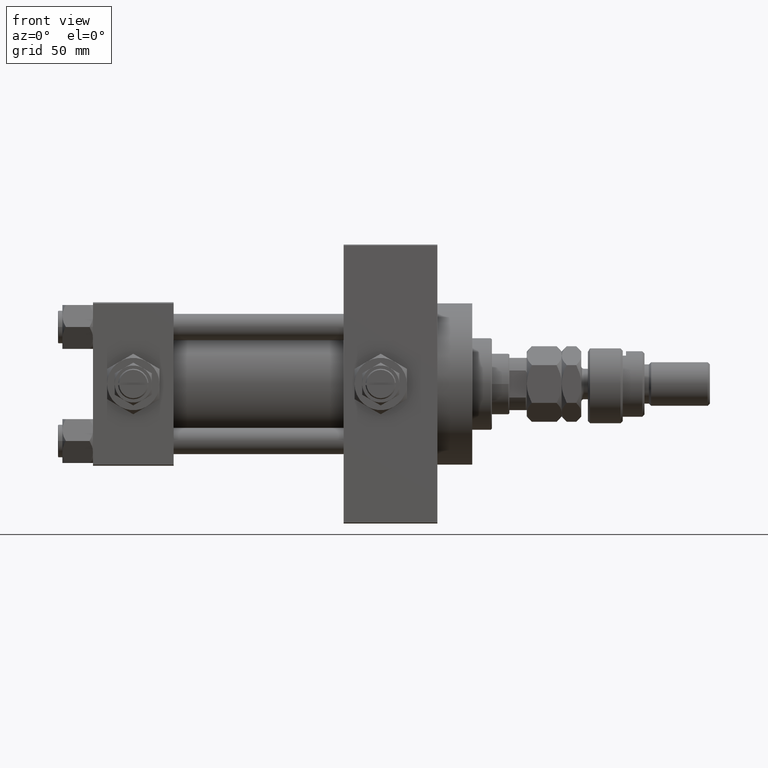
[diagram: clean part render]
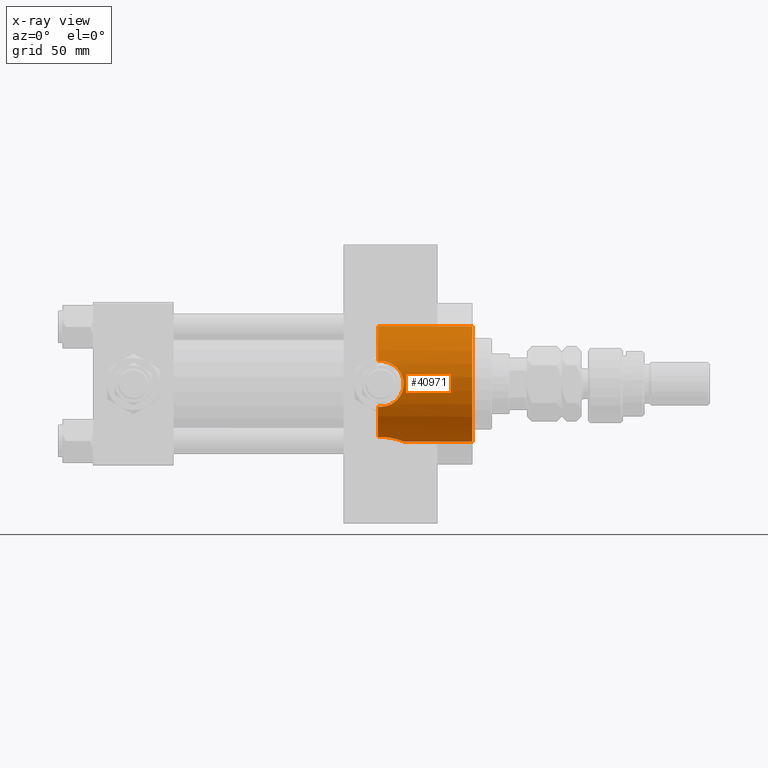
[diagram: x-ray — body ghosted, one internal face saturated and labeled with its STEP entity id]
A machine part, front view, then the same camera in x-ray: the body is ghosted and one INTERNAL B-rep face — a face not visible from any outside direction — is saturated and labeled: STEP entity #40971.
In plain terms, the highlighted cylindrical surface (partial cylindrical patch) has radius 26.5 mm, axis along (1, 0, 0).
Its self-contained STEP definition (entity closure, byte-faithful):
#74 = CARTESIAN_POINT ( 'NONE',  ( 174.0000000000000000, 0.000000000000000000, 0.000000000000000000 ) ) ;
#217 = VERTEX_POINT ( 'NONE', #51895 ) ;
#335 = EDGE_CURVE ( 'NONE', #34416, #4103, #43210, .T. ) ;
#417 = VECTOR ( 'NONE', #37359, 1000.000000000000000 ) ;
#613 = CARTESIAN_POINT ( 'NONE',  ( 131.5811236364006049, -24.33967132070604933, -10.47999999999998444 ) ) ;
#1700 = CARTESIAN_POINT ( 'NONE',  ( 139.5076201536012093, -7.348534936426551312, -25.46581292754183679 ) ) ;
#2255 = CYLINDRICAL_SURFACE ( 'NONE', #23442, 26.50000000000000355 ) ;
#2316 = CARTESIAN_POINT ( 'NONE',  ( 141.4057128516256228, -26.09263577897064224, -4.673612418766440513 ) ) ;
#2570 = CARTESIAN_POINT ( 'NONE',  ( 137.2635990777562256, -24.90054338428140568, -9.068796382691630242 ) ) ;
#2826 = CARTESIAN_POINT ( 'NONE',  ( 142.1219222710722647, -26.36027543327035261, 2.738055544399092600 ) ) ;
#3090 = CARTESIAN_POINT ( 'NONE',  ( 139.8850942087586304, -25.58093385762821725, 6.936447548980003042 ) ) ;
#3885 = AXIS2_PLACEMENT_3D ( 'NONE', #74, #24874, #35961 ) ;
#4103 = VERTEX_POINT ( 'NONE', #9917 ) ;
#5633 = CARTESIAN_POINT ( 'NONE',  ( 132.0000000000000000, -24.33967132070604933, -10.47999999999998444 ) ) ;
#5653 = CARTESIAN_POINT ( 'NONE',  ( 132.2451057705677329, -10.50334255171939013, -24.32972513250578928 ) ) ;
#5912 = CARTESIAN_POINT ( 'NONE',  ( 138.6874981071936759, -8.077221093107572969, -25.24030799844106454 ) ) ;
#6172 = CARTESIAN_POINT ( 'NONE',  ( 140.6508763872861323, -5.926808359427509387, -25.83050513016100069 ) ) ;
#6440 = CARTESIAN_POINT ( 'NONE',  ( 138.3983008714430412, -8.308216825530742256, -25.16494175890555596 ) ) ;
#6535 = CARTESIAN_POINT ( 'NONE',  ( 141.9191483855533988, -26.28308039691835774, 3.400110870430087306 ) ) ;
#6731 = CARTESIAN_POINT ( 'NONE',  ( 130.7400000000000091, -10.40398000767012832, -24.37226292324946186 ) ) ;
#7245 = CARTESIAN_POINT ( 'NONE',  ( 132.0000000000000000, -24.33967132070604933, 10.47999999999998799 ) ) ;
#7260 = DIRECTION ( 'NONE',  ( 0.000000000000000000, 0.000000000000000000, -1.000000000000000000 ) ) ;
#7419 = ORIENTED_EDGE ( 'NONE', *, *, #43731, .F. ) ;
#7506 = CARTESIAN_POINT ( 'NONE',  ( 131.1580741051582208, -24.35064928096444703, 10.45461191700780645 ) ) ;
#8403 = DIRECTION ( 'NONE',  ( 0.000000000000000000, 0.000000000000000000, -1.000000000000000000 ) ) ;
#8791 = ORIENTED_EDGE ( 'NONE', *, *, #13698, .T. ) ;
#8805 = EDGE_CURVE ( 'NONE', #13009, #217, #47596, .T. ) ;
#9318 = ORIENTED_EDGE ( 'NONE', *, *, #42262, .T. ) ;
#9624 = CARTESIAN_POINT ( 'NONE',  ( 141.2276638786151750, -4.981583166679961039, -26.02957788900645397 ) ) ;
#9917 = CARTESIAN_POINT ( 'NONE',  ( 132.0000000000000000, -24.33967132070604933, 10.47999999999998799 ) ) ;
#10144 = EDGE_CURVE ( 'NONE', #4103, #32244, #18688, .T. ) ;
#10155 = CARTESIAN_POINT ( 'NONE',  ( 141.8335546017134448, -3.642695553053290958, -26.25084325021122922 ) ) ;
#10509 = CARTESIAN_POINT ( 'NONE',  ( 136.6580558779861008, -24.77960996754317691, -9.394203453174519325 ) ) ;
#10983 = EDGE_LOOP ( 'NONE', ( #14423, #40629, #38777, #46725, #8791, #7419, #9318, #50730, #38457 ) ) ;
#11033 = CARTESIAN_POINT ( 'NONE',  ( 138.4049404352971351, -25.16229795609818609, -8.322848467437516717 ) ) ;
#11218 = CARTESIAN_POINT ( 'NONE',  ( 131.5796744023297435, -24.33967132070604933, 10.47999999999998799 ) ) ;
#11512 = CARTESIAN_POINT ( 'NONE',  ( 132.0000000000000000, -24.33967132070604933, -10.47999999999998444 ) ) ;
#11569 = B_SPLINE_CURVE_WITH_KNOTS ( 'NONE', 3,
 ( #13329, #44400, #48356, #28356, #46229, #10155, #45959, #26232, #9624, #42288, #6172, #45690, #1700, #5912, #6440, #29658, #22547, #25708, #18599, #42545, #37825, #41771, #38614, #5653, #30709, #41500 ),
 .UNSPECIFIED., .F., .F.,
 ( 4, 2, 2, 2, 2, 2, 2, 2, 2, 2, 2, 2, 4 ),
 ( 0.01781170071191079049, 0.02003745927526348961, 0.02115033855693983916, 0.02226321783861619219, 0.02337609712029254175, 0.02448897640196889131, 0.02671473496532159389, 0.02782761424699794345, 0.02894049352867429648, 0.03005337281035064950, 0.03116625209202700253, 0.03339201065537962532, 0.03561776921873225504 ),
 .UNSPECIFIED. ) ;
#12066 = CARTESIAN_POINT ( 'NONE',  ( 138.9147507852791534, -25.30155050139244111, 7.882476147205575323 ) ) ;
#13009 = VERTEX_POINT ( 'NONE', #15355 ) ;
#13329 = CARTESIAN_POINT ( 'NONE',  ( 142.4800000000001603, 1.044554930096985600E-14, -26.50000000000006750 ) ) ;
#13698 = EDGE_CURVE ( 'NONE', #13009, #39894, #11569, .T. ) ;
#14213 = CARTESIAN_POINT ( 'NONE',  ( 141.9389570606566053, -26.28956209411558476, -3.395175965175881938 ) ) ;
#14423 = ORIENTED_EDGE ( 'NONE', *, *, #15668, .F. ) ;
#14972 = DIRECTION ( 'NONE',  ( 1.000000000000000000, -0.000000000000000000, -0.000000000000000000 ) ) ;
#14997 = CARTESIAN_POINT ( 'NONE',  ( 140.3132647636415413, -25.71940794313461254, -6.390292897823897533 ) ) ;
#15355 = CARTESIAN_POINT ( 'NONE',  ( 142.4800000000001603, 1.044554930096985600E-14, -26.50000000000006750 ) ) ;
#15668 = EDGE_CURVE ( 'NONE', #44246, #32244, #21460, .T. ) ;
#16024 = CARTESIAN_POINT ( 'NONE',  ( 138.1110651716822701, -25.09360970262139645, 8.520611273842991551 ) ) ;
#16275 = CARTESIAN_POINT ( 'NONE',  ( 132.6982936874238703, -24.33967132070605288, 10.47999999999998799 ) ) ;
#16618 = CARTESIAN_POINT ( 'NONE',  ( 174.0000000000000000, 3.245314017740486554E-15, 26.50000000000000355 ) ) ;
#18426 = CARTESIAN_POINT ( 'NONE',  ( 142.3421836049517140, -26.44572692659851754, -1.728475508984261610 ) ) ;
#18599 = CARTESIAN_POINT ( 'NONE',  ( 136.5335921408433251, -9.455792512420339690, -24.75606841526505519 ) ) ;
#18686 = CARTESIAN_POINT ( 'NONE',  ( 141.3916535229813576, -26.08830885934474253, 4.663043711798783519 ) ) ;
#18688 = B_SPLINE_CURVE_WITH_KNOTS ( 'NONE', 3,
 ( #7245, #11218, #7506, #50725 ),
 .UNSPECIFIED., .F., .F.,
 ( 4, 4 ),
 ( 0.03437190755806009829, 0.03561776921873222035 ),
 .UNSPECIFIED. ) ;
#18942 = CARTESIAN_POINT ( 'NONE',  ( 141.8022638174866472, -26.23907308479209988, 3.723318718764343949 ) ) ;
#21460 = CIRCLE ( 'NONE', #50042, 26.50000000000000355 ) ;
#21481 = CARTESIAN_POINT ( 'NONE',  ( 130.7400000000000091, -24.37226292324946542, -10.40398000767012299 ) ) ;
#22547 = CARTESIAN_POINT ( 'NONE',  ( 137.4947120380321905, -8.931495953537146093, -24.95025484238639990 ) ) ;
#22635 = CARTESIAN_POINT ( 'NONE',  ( 136.3489237122697659, -24.72318467201153425, -9.541179571695405315 ) ) ;
#22896 = CARTESIAN_POINT ( 'NONE',  ( 142.4114040688937735, -26.47265107862980926, 1.382412405478187001 ) ) ;
#23442 = AXIS2_PLACEMENT_3D ( 'NONE', #26530, #42578, #7260 ) ;
#23680 = CARTESIAN_POINT ( 'NONE',  ( 138.3864792908362631, -25.16230905708523480, 8.316254619809530624 ) ) ;
#24187 = CARTESIAN_POINT ( 'NONE',  ( 134.7286532048194090, -24.48994387988090438, 10.12445329003760008 ) ) ;
#24439 = CARTESIAN_POINT ( 'NONE',  ( 134.3947302122628287, -24.45488967133339386, 10.20851256290625741 ) ) ;
#24874 = DIRECTION ( 'NONE',  ( 1.000000000000000000, 0.000000000000000000, 0.000000000000000000 ) ) ;
#25211 = AXIS2_PLACEMENT_3D ( 'NONE', #30118, #38281, #34320 ) ;
#25644 = CARTESIAN_POINT ( 'NONE',  ( 130.7400000000000091, -24.37226292324946186, 10.40398000767012654 ) ) ;
#25708 = CARTESIAN_POINT ( 'NONE',  ( 136.8603660912149849, -9.291949300782544441, -24.81826977973610937 ) ) ;
#25954 = CARTESIAN_POINT ( 'NONE',  ( 131.1611364518797984, -24.35049096341793273, -10.45498279016080012 ) ) ;
#26065 = CARTESIAN_POINT ( 'NONE',  ( 139.8811664359166400, -25.58300917221410486, -6.916171625962123315 ) ) ;
#26232 = CARTESIAN_POINT ( 'NONE',  ( 141.3963988635402700, -4.655434592126345805, -26.09007526830297863 ) ) ;
#26236 = VECTOR ( 'NONE', #14972, 1000.000000000000000 ) ;
#26530 = CARTESIAN_POINT ( 'NONE',  ( 130.7400000000000091, 0.000000000000000000, 0.000000000000000000 ) ) ;
#26589 = CARTESIAN_POINT ( 'NONE',  ( 138.9276451403626993, -25.30216499957183984, -7.893159106980509598 ) ) ;
#26663 = CIRCLE ( 'NONE', #3885, 26.50000000000000355 ) ;
#26845 = CARTESIAN_POINT ( 'NONE',  ( 142.4626037639855838, -26.49310609510638770, -0.6963515910539429532 ) ) ;
#27104 = CARTESIAN_POINT ( 'NONE',  ( 141.5385175848663266, -26.14168889184969657, 4.354785931857517056 ) ) ;
#28115 = VERTEX_POINT ( 'NONE', #16618 ) ;
#28356 = CARTESIAN_POINT ( 'NONE',  ( 142.1654842721634111, -2.575241489874372736, -26.37710048711162969 ) ) ;
#29658 = CARTESIAN_POINT ( 'NONE',  ( 137.8022832347253086, -8.734885810676995987, -25.02004257437574708 ) ) ;
#30118 = CARTESIAN_POINT ( 'NONE',  ( 130.7400000000000091, 0.000000000000000000, 0.000000000000000000 ) ) ;
#30288 = CARTESIAN_POINT ( 'NONE',  ( 135.4024368383432204, -24.56844862672226881, -9.935854460437951730 ) ) ;
#30709 = CARTESIAN_POINT ( 'NONE',  ( 131.4868983507927283, -10.49443499905852661, -24.33364968799253703 ) ) ;
#31060 = CARTESIAN_POINT ( 'NONE',  ( 132.6904960883777846, -24.33967132070604578, -10.47999999999998622 ) ) ;
#31551 = CARTESIAN_POINT ( 'NONE',  ( 130.7400000000000091, 3.245314017740486554E-15, 26.50000000000000355 ) ) ;
#31578 = CARTESIAN_POINT ( 'NONE',  ( 135.7173844672076939, -24.61993612039166024, 9.804529592362708712 ) ) ;
#32084 = CARTESIAN_POINT ( 'NONE',  ( 136.6659000583123031, -24.77500862834707362, 9.408993987884874954 ) ) ;
#32244 = VERTEX_POINT ( 'NONE', #25644 ) ;
#32335 = CARTESIAN_POINT ( 'NONE',  ( 135.3904700717597223, -24.57248644795726022, 9.922439993611760656 ) ) ;
#32726 = EDGE_CURVE ( 'NONE', #44246, #28115, #46034, .T. ) ;
#32900 = CARTESIAN_POINT ( 'NONE',  ( 130.7400000000000091, 0.000000000000000000, 0.000000000000000000 ) ) ;
#33412 = CARTESIAN_POINT ( 'NONE',  ( 130.7400000000000091, 3.245314017740486554E-15, 26.50000000000000355 ) ) ;
#33589 = CIRCLE ( 'NONE', #25211, 26.50000000000000355 ) ;
#34320 = DIRECTION ( 'NONE',  ( 0.000000000000000000, 0.000000000000000000, -1.000000000000000000 ) ) ;
#34416 = VERTEX_POINT ( 'NONE', #11512 ) ;
#34740 = CARTESIAN_POINT ( 'NONE',  ( 133.3786097457406470, -24.36915941385105100, -10.41231194222668321 ) ) ;
#35004 = CARTESIAN_POINT ( 'NONE',  ( 141.0679913760332624, -25.97354752128885025, 5.264851845784581208 ) ) ;
#35267 = CARTESIAN_POINT ( 'NONE',  ( 132.0000000000000000, -24.33967132070604933, -10.47999999999998444 ) ) ;
#35515 = CARTESIAN_POINT ( 'NONE',  ( 132.0000000000000000, -24.33967132070604933, 10.47999999999998799 ) ) ;
#35961 = DIRECTION ( 'NONE',  ( 0.000000000000000000, 0.000000000000000000, -1.000000000000000000 ) ) ;
#37117 = VERTEX_POINT ( 'NONE', #45756 ) ;
#37359 = DIRECTION ( 'NONE',  ( 1.000000000000000000, -0.000000000000000000, -0.000000000000000000 ) ) ;
#37825 = CARTESIAN_POINT ( 'NONE',  ( 135.5115735695664227, -9.881194972351261541, -24.58915736193083390 ) ) ;
#38281 = DIRECTION ( 'NONE',  ( 1.000000000000000000, 0.000000000000000000, 0.000000000000000000 ) ) ;
#38448 = CARTESIAN_POINT ( 'NONE',  ( 140.5155153844949893, -25.78569419426081311, -6.118106053452856408 ) ) ;
#38457 = ORIENTED_EDGE ( 'NONE', *, *, #10144, .T. ) ;
#38614 = CARTESIAN_POINT ( 'NONE',  ( 133.7216423275558839, -10.36418010715236093, -24.38933169417625635 ) ) ;
#38702 = CARTESIAN_POINT ( 'NONE',  ( 137.5577538920436496, -24.96463143003449758, -8.891425016462831010 ) ) ;
#38754 = EDGE_CURVE ( 'NONE', #28115, #217, #26663, .T. ) ;
#38777 = ORIENTED_EDGE ( 'NONE', *, *, #38754, .T. ) ;
#38956 = CARTESIAN_POINT ( 'NONE',  ( 139.6501220615577097, -25.51256335955728005, -7.170912732211439433 ) ) ;
#39194 = CARTESIAN_POINT ( 'NONE',  ( 130.7400000000000091, 0.000000000000000000, -26.50000000000000355 ) ) ;
#39218 = CARTESIAN_POINT ( 'NONE',  ( 142.4798633477534224, -26.49994595790487750, 0.6963870350870441372 ) ) ;
#39894 = VERTEX_POINT ( 'NONE', #6731 ) ;
#40309 = DIRECTION ( 'NONE',  ( 1.000000000000000000, 0.000000000000000000, 0.000000000000000000 ) ) ;
#40629 = ORIENTED_EDGE ( 'NONE', *, *, #32726, .T. ) ;
#40971 = ADVANCED_FACE ( 'NONE', ( #51267 ), #2255, .F. ) ;
#41500 = CARTESIAN_POINT ( 'NONE',  ( 130.7400000000000091, -10.40398000767012832, -24.37226292324946186 ) ) ;
#41771 = CARTESIAN_POINT ( 'NONE',  ( 134.4459359432478323, -10.21777125531389174, -24.45211332338677579 ) ) ;
#42125 = CARTESIAN_POINT ( 'NONE',  ( 142.3935590552673602, -26.46591511510092332, -1.387412420731378715 ) ) ;
#42262 = EDGE_CURVE ( 'NONE', #37117, #34416, #50962, .T. ) ;
#42288 = CARTESIAN_POINT ( 'NONE',  ( 140.8553297434205831, -5.616857363200505660, -25.89992295911058307 ) ) ;
#42545 = CARTESIAN_POINT ( 'NONE',  ( 135.8600678267363833, -9.750145953289925060, -24.64162310621548713 ) ) ;
#42578 = DIRECTION ( 'NONE',  ( 1.000000000000000000, -0.000000000000000000, -0.000000000000000000 ) ) ;
#42635 = CARTESIAN_POINT ( 'NONE',  ( 142.2075249541714754, -26.39335609204158573, 2.399236127628234794 ) ) ;
#42892 = CARTESIAN_POINT ( 'NONE',  ( 142.4800680225663712, -26.50002690099940494, -0.3451042088078350445 ) ) ;
#43145 = CARTESIAN_POINT ( 'NONE',  ( 140.3165002292777785, -25.71874665637611912, 6.413821170274206729 ) ) ;
#43210 = B_SPLINE_CURVE_WITH_KNOTS ( 'NONE', 3,
 ( #35267, #31060, #34740, #47105, #30288, #22635, #10509, #2570, #38702, #11033, #26589, #38956, #26065, #14997, #38448, #50274, #2316, #14213, #50537, #18426, #42125, #26845, #42892, #39218, #22896, #42635, #2826, #6535, #18942, #27104, #18686, #35004, #51065, #43145, #3090, #51325, #12066, #23680, #16024, #44428, #32084, #31578, #32335, #24187, #24439, #48385, #16275, #35515 ),
 .UNSPECIFIED., .F., .F.,
 ( 4, 2, 2, 2, 2, 2, 2, 2, 2, 2, 2, 2, 2, 2, 2, 2, 2, 2, 2, 2, 2, 2, 2, 4 ),
 ( 0.001255586767787714641, 0.003325356817179755085, 0.005395126866571796180, 0.006430011891267852289, 0.007464896915963908398, 0.009534666965355952095, 0.01056955199005197438, 0.01160443701474799492, 0.01367420706413999265, 0.01574397711353198864, 0.01677886213822798664, 0.01781374716292398463, 0.01988351721231598410, 0.02091840223701198556, 0.02195328726170798356, 0.02298817228640397808, 0.02402305731109997608, 0.02609282736049197207, 0.02712771238518797007, 0.02816259740988396806, 0.03023236745927596406, 0.03126725248397199675, 0.03230213750866803291, 0.03437190755806009829 ),
 .UNSPECIFIED. ) ;
#43731 = EDGE_CURVE ( 'NONE', #37117, #39894, #33589, .T. ) ;
#44246 = VERTEX_POINT ( 'NONE', #31551 ) ;
#44400 = CARTESIAN_POINT ( 'NONE',  ( 142.4800000000000466, -0.7466733969459936615, -26.50000000000001421 ) ) ;
#44428 = CARTESIAN_POINT ( 'NONE',  ( 137.2636119660473923, -24.89625137302611080, 9.087734872939162045 ) ) ;
#45690 = CARTESIAN_POINT ( 'NONE',  ( 139.9981355541606547, -6.811571481472481260, -25.61680511670812876 ) ) ;
#45756 = CARTESIAN_POINT ( 'NONE',  ( 130.7400000000000091, -24.37226292324946542, -10.40398000767012299 ) ) ;
#45959 = CARTESIAN_POINT ( 'NONE',  ( 141.6993435614955956, -3.985990130492289563, -26.20070574291654353 ) ) ;
#46034 = LINE ( 'NONE', #33412, #417 ) ;
#46229 = CARTESIAN_POINT ( 'NONE',  ( 142.0665133812162537, -2.938253791439163987, -26.33899517628734088 ) ) ;
#46725 = ORIENTED_EDGE ( 'NONE', *, *, #8805, .F. ) ;
#47105 = CARTESIAN_POINT ( 'NONE',  ( 134.7461877943154036, -24.48462605612511567, -10.13781324604277145 ) ) ;
#47596 = LINE ( 'NONE', #39194, #26236 ) ;
#48356 = CARTESIAN_POINT ( 'NONE',  ( 142.4011065554137758, -1.483758503940583839, -26.46850309434598003 ) ) ;
#48385 = CARTESIAN_POINT ( 'NONE',  ( 133.3839948142214951, -24.36973996242157980, 10.41091756284551728 ) ) ;
#50042 = AXIS2_PLACEMENT_3D ( 'NONE', #32900, #40309, #8403 ) ;
#50274 = CARTESIAN_POINT ( 'NONE',  ( 141.0816778311290136, -25.97633853132261450, -5.273786452924785983 ) ) ;
#50537 = CARTESIAN_POINT ( 'NONE',  ( 142.1391112229687792, -26.36675217432884466, -2.738755341944245636 ) ) ;
#50725 = CARTESIAN_POINT ( 'NONE',  ( 130.7400000000000091, -24.37226292324946186, 10.40398000767012654 ) ) ;
#50730 = ORIENTED_EDGE ( 'NONE', *, *, #335, .T. ) ;
#50962 = B_SPLINE_CURVE_WITH_KNOTS ( 'NONE', 3,
 ( #21481, #25954, #613, #5633 ),
 .UNSPECIFIED., .F., .F.,
 ( 4, 4 ),
 ( 0.000000000000000000, 0.001255586767787714641 ),
 .UNSPECIFIED. ) ;
#51065 = CARTESIAN_POINT ( 'NONE',  ( 140.8904987776702455, -25.91192981801192730, 5.559420023815748735 ) ) ;
#51267 = FACE_OUTER_BOUND ( 'NONE', #10983, .T. ) ;
#51325 = CARTESIAN_POINT ( 'NONE',  ( 139.1663633815065566, -25.37171319999175623, 7.654298772871978684 ) ) ;
#51895 = CARTESIAN_POINT ( 'NONE',  ( 174.0000000000000000, 0.000000000000000000, -26.50000000000000355 ) ) ;